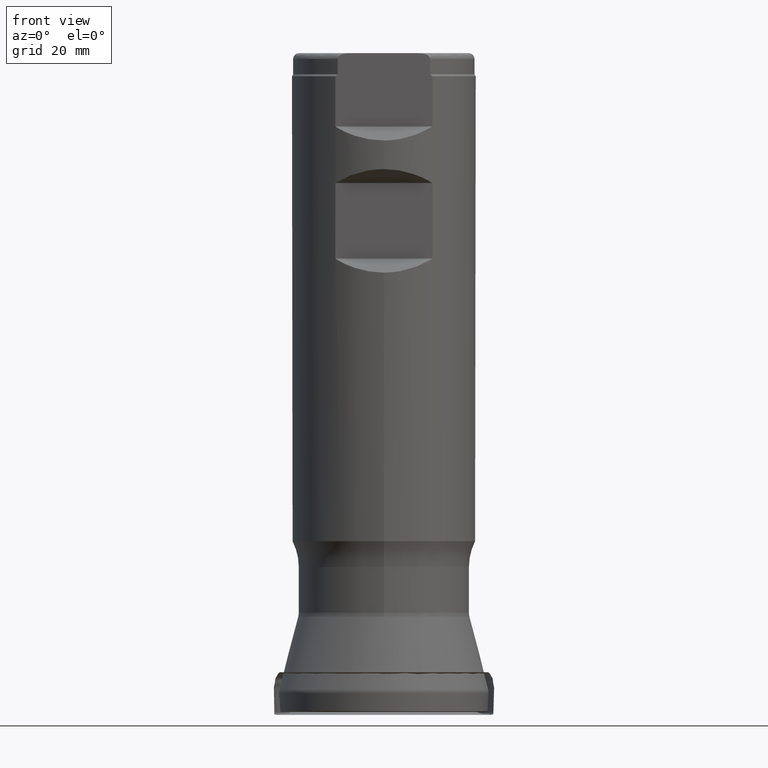
[diagram: clean part render]
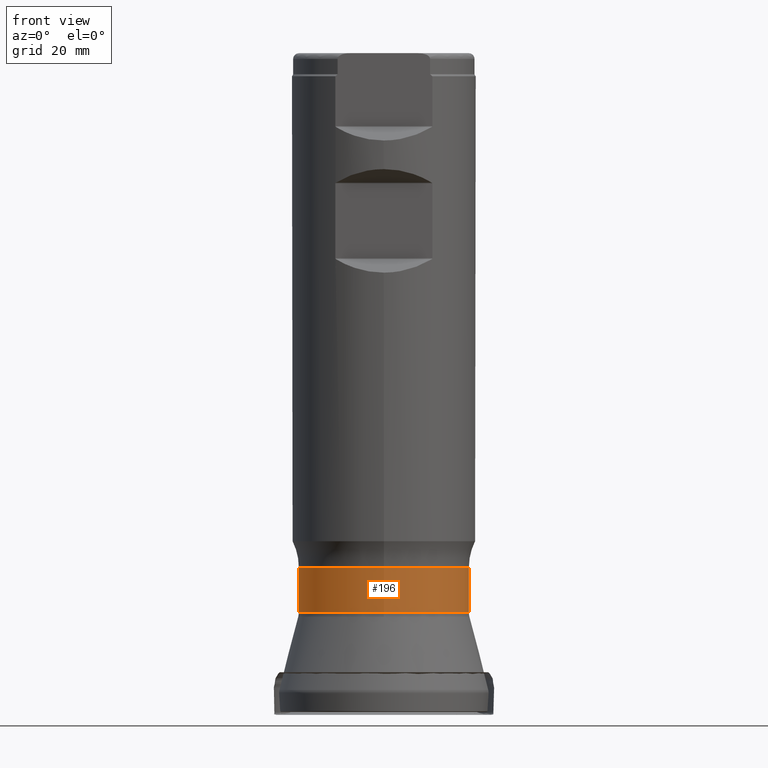
[diagram: same view with one face highlighted and labeled with its STEP entity id]
A machine part, front view. The second image highlights one B-rep face of the part: STEP entity #196.
In plain terms, the highlighted cylindrical surface (bore or boss wall) has radius 14.8 mm, axis along (0, 0, 1).
Its self-contained STEP definition (entity closure, byte-faithful):
#196=ADVANCED_FACE('',(#301,#302),#240,.T.);
#240=CYLINDRICAL_SURFACE('',#839,14.8);
#260=CIRCLE('',#837,14.8);
#261=CIRCLE('',#838,14.8);
#301=FACE_BOUND('',#385,.T.);
#302=FACE_BOUND('',#386,.T.);
#385=EDGE_LOOP('',(#538));
#386=EDGE_LOOP('',(#539));
#538=ORIENTED_EDGE('',*,*,#730,.T.);
#539=ORIENTED_EDGE('',*,*,#731,.T.);
#666=VERTEX_POINT('',#1447);
#667=VERTEX_POINT('',#1449);
#730=EDGE_CURVE('',#666,#666,#260,.T.);
#731=EDGE_CURVE('',#667,#667,#261,.T.);
#837=AXIS2_PLACEMENT_3D('',#1446,#947,#948);
#838=AXIS2_PLACEMENT_3D('',#1448,#949,#950);
#839=AXIS2_PLACEMENT_3D('',#1450,#951,#952);
#947=DIRECTION('',(0.,1.17145536458252E-15,1.));
#948=DIRECTION('',(0.,-1.,1.17211045674109E-15));
#949=DIRECTION('',(0.,-1.17145536458252E-15,-1.));
#950=DIRECTION('',(0.,-1.,1.17211045674109E-15));
#951=DIRECTION('',(0.,1.17145536458252E-15,1.));
#952=DIRECTION('',(0.,-1.,1.17145536458252E-15));
#1446=CARTESIAN_POINT('',(0.,2.07187410793546E-14,17.6863256644338));
#1447=CARTESIAN_POINT('',(0.,-14.8,17.6863256644338));
#1448=CARTESIAN_POINT('',(0.,2.98567962809267E-14,25.4869260781155));
#1449=CARTESIAN_POINT('',(0.,-14.8,25.4869260781155));
#1450=CARTESIAN_POINT('',(0.,0.,0.));